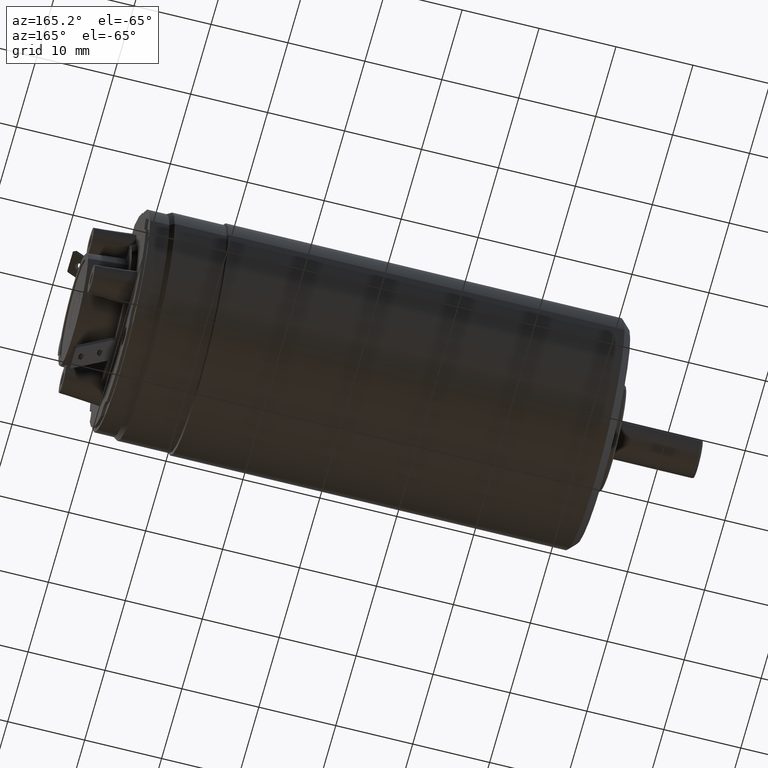
[diagram: clean part render]
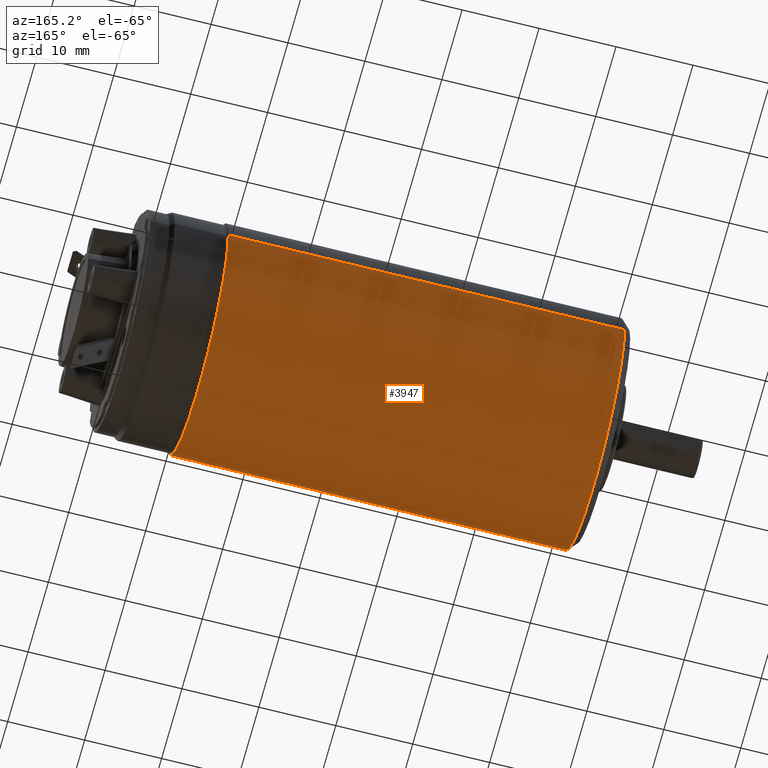
[diagram: same view with one face highlighted and labeled with its STEP entity id]
A machine part, auxiliary view. The second image highlights one B-rep face of the part: STEP entity #3947.
In plain terms, the highlighted cylindrical surface (partial cylindrical patch) has radius 15 mm, axis along (-1, 0, 0).
Its self-contained STEP definition (entity closure, byte-faithful):
#1111=DIRECTION('',(-1.E0,0.E0,0.E0));
#1112=VECTOR('',#1111,5.15E1);
#1113=CARTESIAN_POINT('',(-1.5E0,1.5E1,0.E0));
#1114=LINE('',#1113,#1112);
#1120=DIRECTION('',(-1.E0,0.E0,0.E0));
#1121=VECTOR('',#1120,5.15E1);
#1122=CARTESIAN_POINT('',(-1.5E0,-1.5E1,0.E0));
#1123=LINE('',#1122,#1121);
#1124=CARTESIAN_POINT('',(-1.5E0,0.E0,0.E0));
#1125=DIRECTION('',(-1.E0,0.E0,0.E0));
#1126=DIRECTION('',(0.E0,1.E0,0.E0));
#1127=AXIS2_PLACEMENT_3D('',#1124,#1125,#1126);
#1129=CARTESIAN_POINT('',(-5.3E1,0.E0,0.E0));
#1130=DIRECTION('',(-1.E0,0.E0,0.E0));
#1131=DIRECTION('',(0.E0,1.E0,0.E0));
#1132=AXIS2_PLACEMENT_3D('',#1129,#1130,#1131);
#2318=CARTESIAN_POINT('',(-1.5E0,1.5E1,0.E0));
#2319=VERTEX_POINT('',#2318);
#2320=CARTESIAN_POINT('',(-5.3E1,1.5E1,0.E0));
#2321=VERTEX_POINT('',#2320);
#2332=CARTESIAN_POINT('',(-1.5E0,-1.5E1,0.E0));
#2333=VERTEX_POINT('',#2332);
#2334=CARTESIAN_POINT('',(-5.3E1,-1.5E1,0.E0));
#2335=VERTEX_POINT('',#2334);
#3935=CARTESIAN_POINT('',(1.1625E1,0.E0,0.E0));
#3936=DIRECTION('',(-1.E0,0.E0,0.E0));
#3937=DIRECTION('',(0.E0,1.E0,0.E0));
#3938=AXIS2_PLACEMENT_3D('',#3935,#3936,#3937);
#3939=CYLINDRICAL_SURFACE('',#3938,1.5E1);
#3940=ORIENTED_EDGE('',*,*,#3925,.T.);
#3942=ORIENTED_EDGE('',*,*,#3941,.T.);
#3943=ORIENTED_EDGE('',*,*,#3928,.F.);
#3944=ORIENTED_EDGE('',*,*,#3899,.F.);
#3945=EDGE_LOOP('',(#3940,#3942,#3943,#3944));
#3946=FACE_OUTER_BOUND('',#3945,.F.);
#3947=ADVANCED_FACE('',(#3946),#3939,.T.);
#1128=CIRCLE('',#1127,1.5E1);
#1133=CIRCLE('',#1132,1.5E1);
#3899=EDGE_CURVE('',#2319,#2333,#1128,.T.);
#3925=EDGE_CURVE('',#2319,#2321,#1114,.T.);
#3928=EDGE_CURVE('',#2333,#2335,#1123,.T.);
#3941=EDGE_CURVE('',#2321,#2335,#1133,.T.);